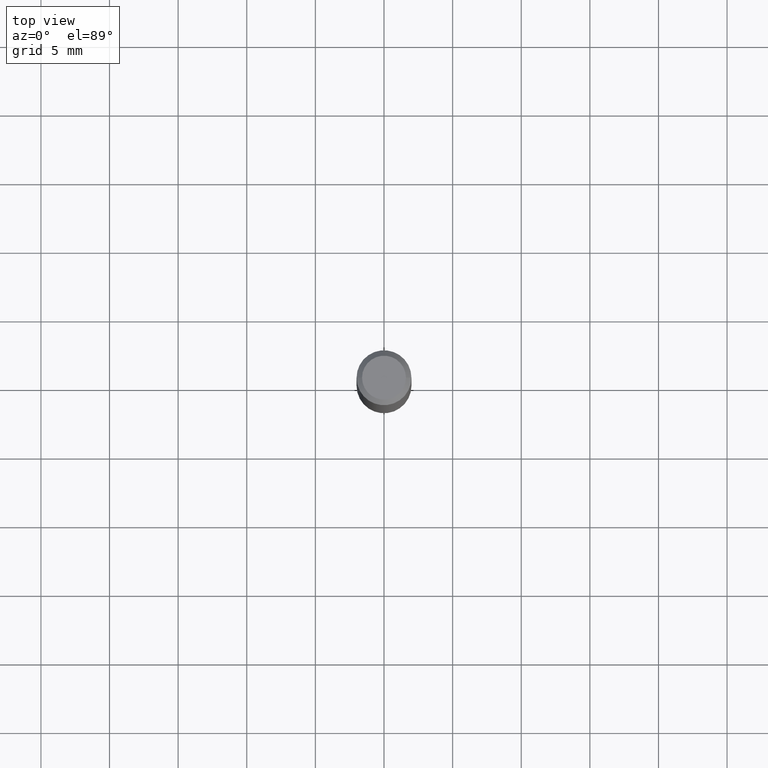
[diagram: clean part render]
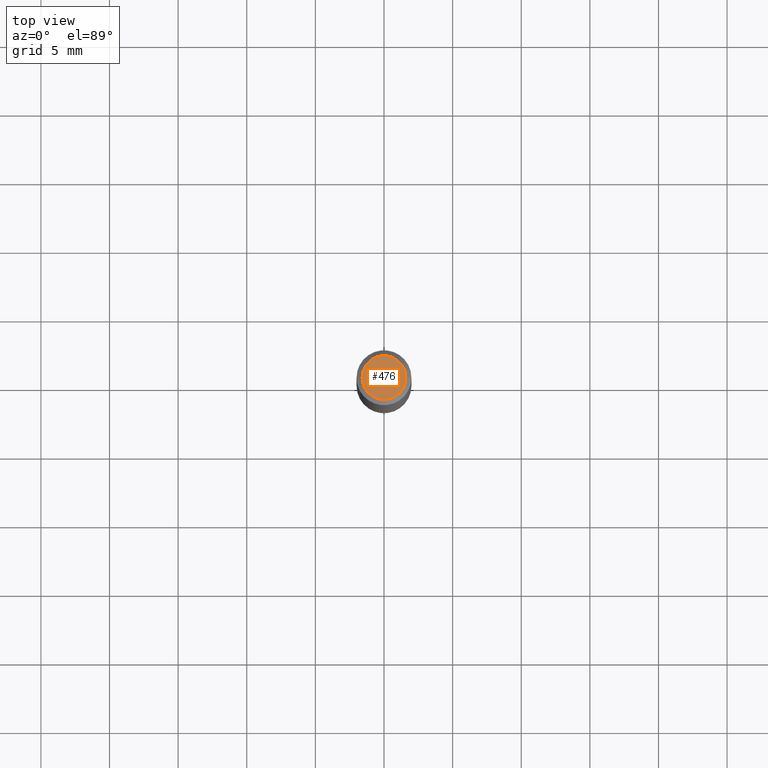
[diagram: same view with one face highlighted and labeled with its STEP entity id]
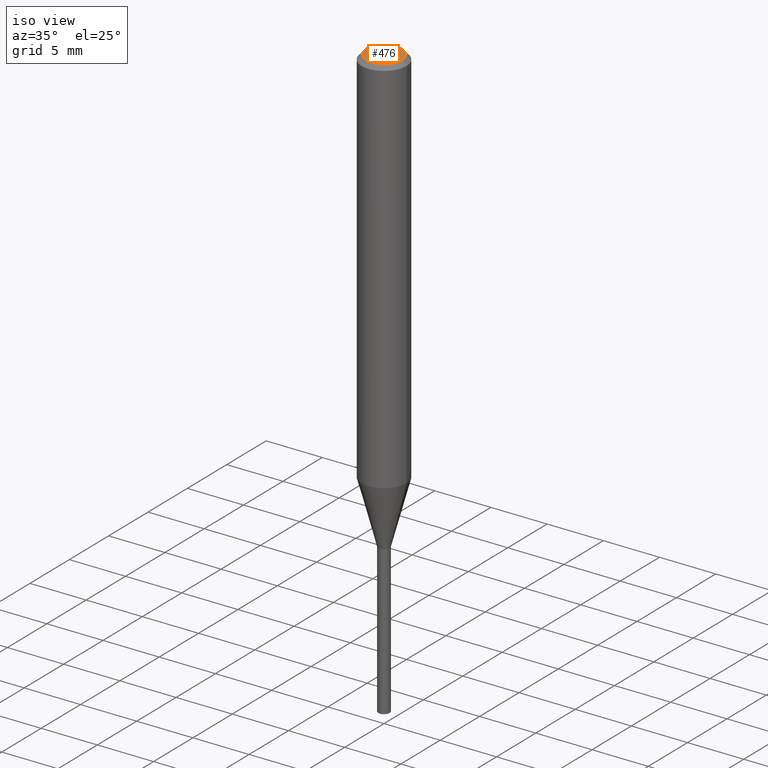
[diagram: same view with one face highlighted and labeled with its STEP entity id]
A machine part, top view. The second image highlights one B-rep face of the part: STEP entity #476.
A second angle (iso view) of the same face is appended — the face is thin or edge-on in the first view.
In plain terms, the highlighted planar face has unit normal (0, -0, -1).
Its self-contained STEP definition (entity closure, byte-faithful):
#48 = VERTEX_POINT ( 'NONE', #281 ) ;
#56 = CARTESIAN_POINT ( 'NONE',  ( 4.713871149261278955E-47, -6.730158695841834933E-33, -1.927594061857933439E-18 ) ) ;
#79 = CARTESIAN_POINT ( 'NONE',  ( 9.427742298522557911E-47, -1.346031739168366987E-32, -3.855188123715866879E-18 ) ) ;
#104 = DIRECTION ( 'NONE',  ( 1.000000000000000000, -6.982962677686265922E-15, 4.875905316334701673E-29 ) ) ;
#106 = CARTESIAN_POINT ( 'NONE',  ( 0.06300000000000000044, -5.137332111354473202E-16, -3.855188123712532709E-18 ) ) ;
#114 = VERTEX_POINT ( 'NONE', #106 ) ;
#133 = DIRECTION ( 'NONE',  ( -2.445468806185136597E-29, 3.491481338843145583E-15, 1.000000000000000000 ) ) ;
#157 = PLANE ( 'NONE',  #479 ) ;
#168 = EDGE_CURVE ( 'NONE', #114, #48, #486, .T. ) ;
#187 = ORIENTED_EDGE ( 'NONE', *, *, #168, .T. ) ;
#204 = FACE_OUTER_BOUND ( 'NONE', #469, .T. ) ;
#271 = AXIS2_PLACEMENT_3D ( 'NONE', #341, #133, #104 ) ;
#281 = CARTESIAN_POINT ( 'NONE',  ( -0.06300000000000000044, 4.674220642376242452E-16, -3.855188123719040041E-18 ) ) ;
#313 = DIRECTION ( 'NONE',  ( -2.445468806185136597E-29, 3.491481338843145583E-15, 1.000000000000000000 ) ) ;
#317 = ORIENTED_EDGE ( 'NONE', *, *, #333, .T. ) ;
#333 = EDGE_CURVE ( 'NONE', #48, #114, #459, .T. ) ;
#341 = CARTESIAN_POINT ( 'NONE',  ( 9.427742298522557911E-47, -1.346031739168366987E-32, -3.855188123715866879E-18 ) ) ;
#346 = DIRECTION ( 'NONE',  ( 1.000000000000000000, -6.982962677686265922E-15, 4.875905316334701673E-29 ) ) ;
#361 = DIRECTION ( 'NONE',  ( 2.438088387897960049E-29, -3.491481338843145188E-15, -1.000000000000000000 ) ) ;
#363 = DIRECTION ( 'NONE',  ( -1.000000000000000000, 6.982962677686265922E-15, -4.876176775795935793E-29 ) ) ;
#433 = AXIS2_PLACEMENT_3D ( 'NONE', #79, #313, #346 ) ;
#459 = CIRCLE ( 'NONE', #433, 0.06300000000000000044 ) ;
#469 = EDGE_LOOP ( 'NONE', ( #317, #187 ) ) ;
#476 = ADVANCED_FACE ( 'NONE', ( #204 ), #157, .F. ) ;
#479 = AXIS2_PLACEMENT_3D ( 'NONE', #56, #361, #363 ) ;
#486 = CIRCLE ( 'NONE', #271, 0.06300000000000000044 ) ;